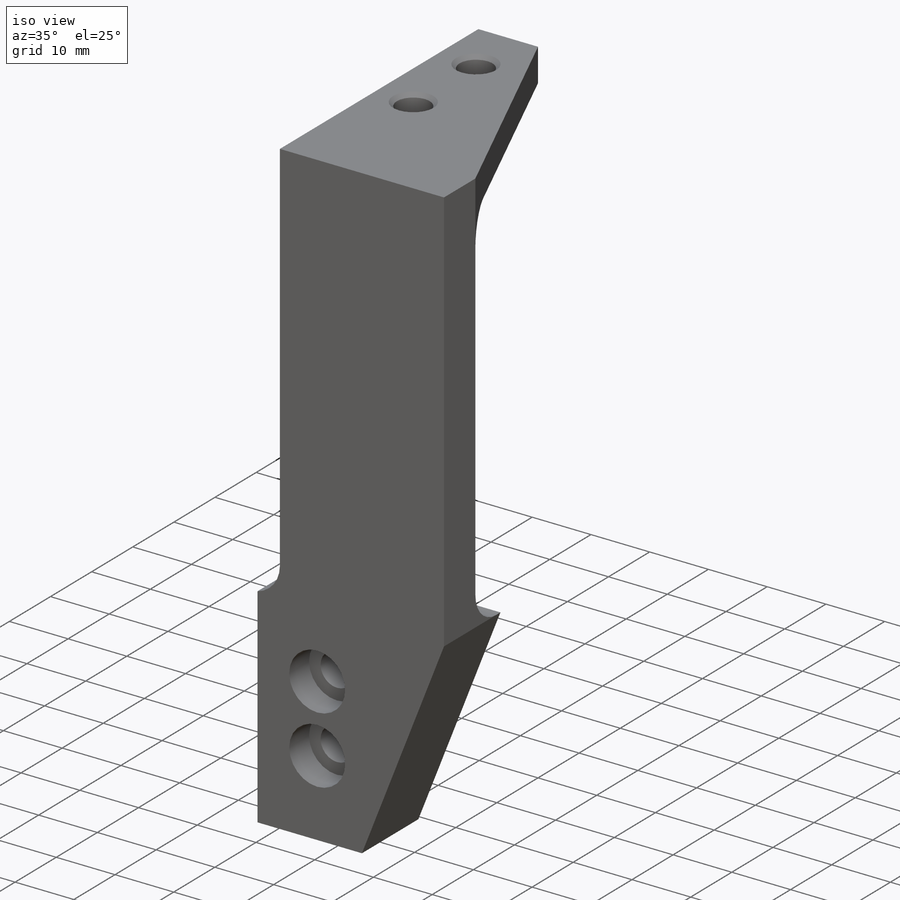
[diagram: iso view]
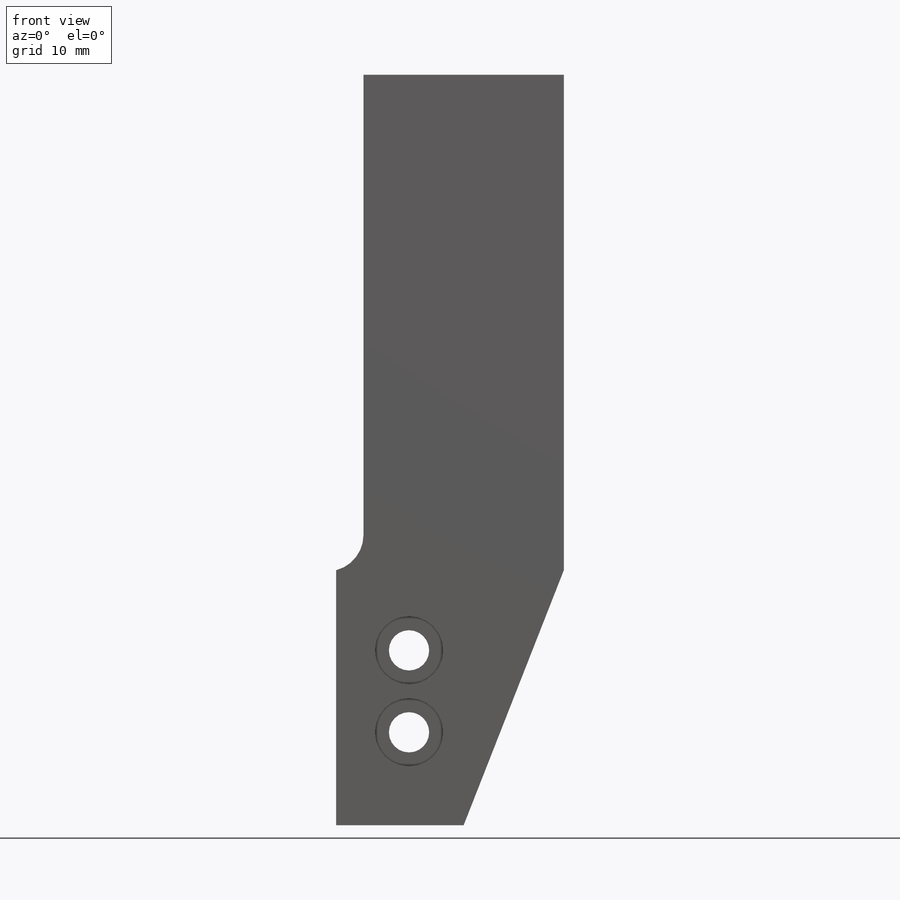
[diagram: front view]
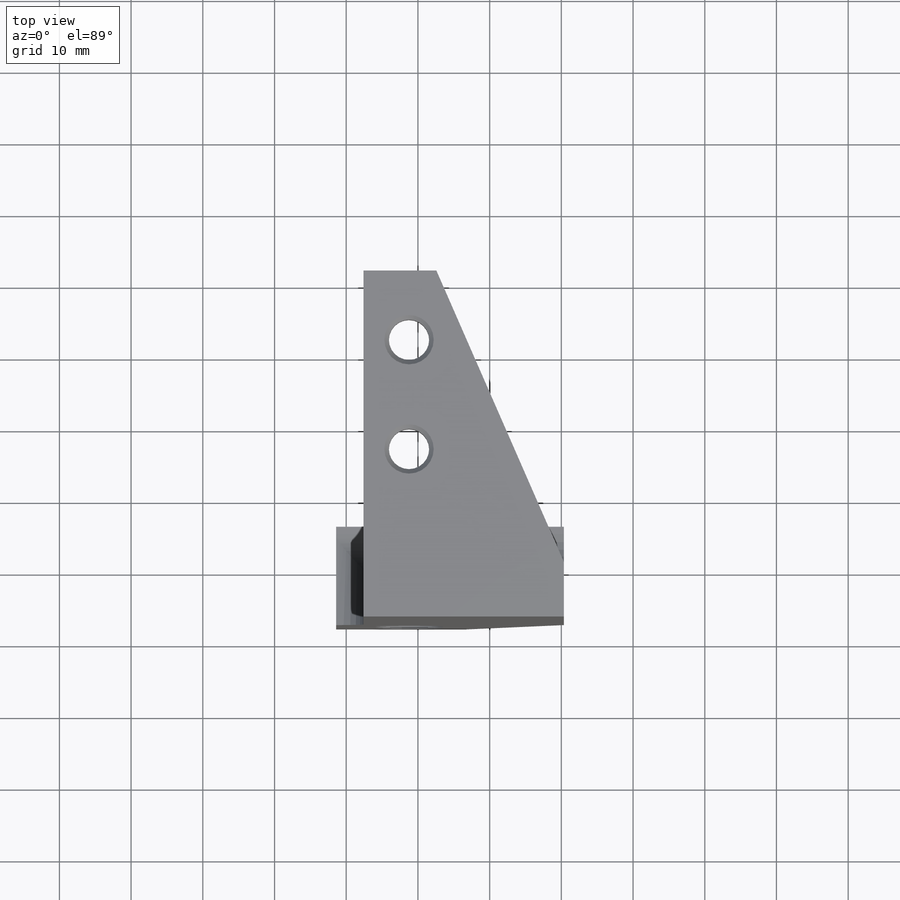
[diagram: top view]
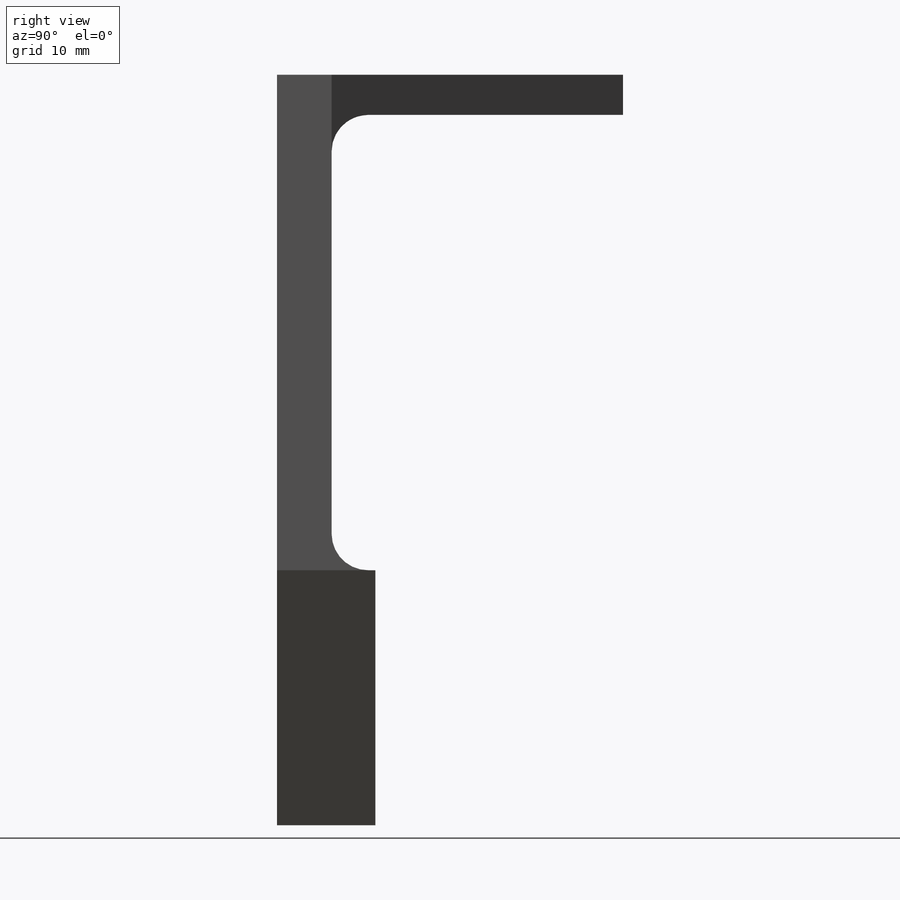
[diagram: right view]
SOLIDWORKS PART (.sldprt)
format: sldprt  version: not decoded by parser v0  size: 315,392 bytes
history: native  units: mm
features: sketch x8, extrude x4, hole x2, fillet x2, material x1 (+14 scaffold rows collapsed)
feature tree (31):
  scaffold x14  (default folders/planes/origin — collapsed)
  material  "COPPER"
  sketch  "Sketch1"  dims[D1=69.088mm D2=27.94mm D3=~49.65241mm D4=~32.293193mm]
  extrude  "Extrude1"  Depth=7.62mm
  sketch  "Sketch12"  dims[D1=10.16mm D2=40.64mm]
  extrude  "Extrude8"  Depth=5.588mm
  hole  "#10 Clearance Hole1"  Diameter=5.6134mm Depth=69.088025mm
  sketch  "3DSketch4"  dims[D1=9.652mm D2=6.35mm D3=15.24mm]
  sketch  "Sketch14"  dims[hole-wizard template sketch: 54 standard entries collapsed; hole parameters kept: c17.Thru Hole Dia.=5.6134mm c17.Thru Hole Depth=~69.088025mm c17.Near C'Sink Dia.=6.8834mm c17.D4=~3.666174mm c17.Near C'Sink Angle=90.0deg]
  sketch  "Sketch18"  dims[D1=35.56mm D2=13.97mm]
  extrude  "Extrude11"  Depth=13.716mm
  sketch  "Sketch21"
  extrude  "Extrude14"  Depth=3.81mm
  fillet  "Fillet3"  Radius=5.08mm
  hole  "CBORE for #10 Socket Head Cap Screw4"  Diameter=5.6134mm Depth=48.26mm
  sketch  "3DSketch5"  dims[c1.D1=~12.614272mm c1.D3=12.7mm c1.D2=~9.462648mm c2.D1=12.7mm c3.D1=11.43mm c3.D2=~9.177896mm c3.D4=12.7mm c3.D3=~8.404706mm c4.D4=~8.404706mm c4.D3=6.35mm c4.D2=12.954mm]
  sketch  "Sketch15"  dims[hole-wizard template sketch: 42 standard entries collapsed; hole parameters kept: c12.Thru Hole Depth=48.26mm c12.C'Bore Dia.=9.525mm c12.C'Bore Depth=4.826mm]
  fillet  "Fillet6"  Radius=5.08mm
decode coverage: 15 of 16 modeling features carry decoded parameters
note: ~ marks probable driven/reference dimensions
note: suppression state not decoded; provenance and decode notes live in map.json
